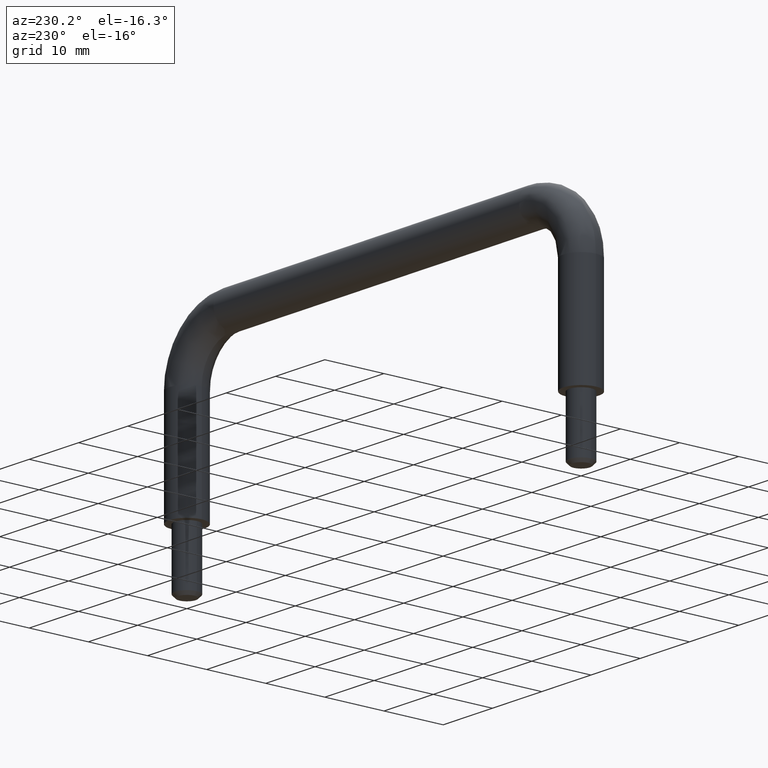
[diagram: clean part render]
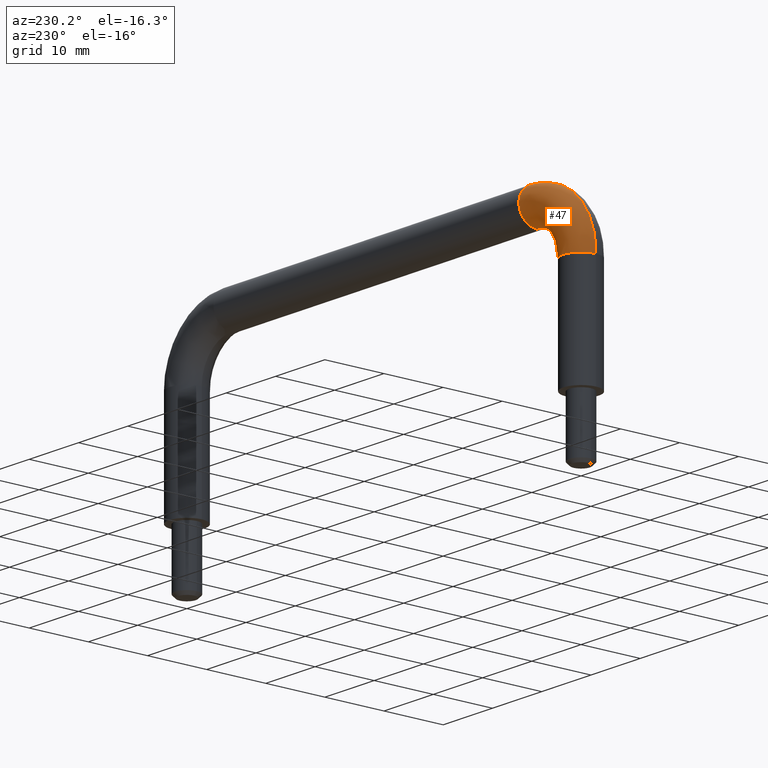
[diagram: same view with one face highlighted and labeled with its STEP entity id]
A machine part, auxiliary view. The second image highlights one B-rep face of the part: STEP entity #47.
In plain terms, the highlighted face is a freeform B-spline surface patch.
Its self-contained STEP definition (entity closure, byte-faithful):
#47=ADVANCED_FACE('',(#135),#134,.T.);
#134=( BOUNDED_SURFACE() B_SPLINE_SURFACE( 3,3,((#456,#457,#458,#459,#460,#461,#462),(#463,#464,#465,#466,#467,#468,#469),(#470,#471,#472,#473,#474,#475,#476),(#477,#478,#479,#480,#481,#482,#483),(#484,#485,#486,#487,#488,#489,#490),(#491,#492,#493,#494,#495,#496,#497),(#498,#499,#500,#501,#502,#503,#504)), .UNSPECIFIED.,.F.,.F.,.F.) B_SPLINE_SURFACE_WITH_KNOTS((4,1,1,1,4),(4,1,1,1,4),(0.00000000000E+00,2.50000000000E-01,5.00000000000E-01,7.50000000000E-01,1.00000000000E+00),(0.00000000000E+00,2.49559115838E-01,5.00000000000E-01,7.50440884162E-01,1.00000000000E+00), .UNSPECIFIED. ) GEOMETRIC_REPRESENTATION_ITEM() RATIONAL_B_SPLINE_SURFACE(((1.00000000000E+00,1.00000000000E+00,1.00000000000E+00,1.00000000000E+00,1.00000000000E+00,1.00000000000E+00,1.00000000000E+00),(1.00000000000E+00,1.00000000000E+00,1.00000000000E+00,1.00000000000E+00,1.00000000000E+00,1.00000000000E+00,1.00000000000E+00),(1.00000000000E+00,1.00000000000E+00,1.00000000000E+00,1.00000000000E+00,1.00000000000E+00,1.00000000000E+00,1.00000000000E+00),(1.00000000000E+00,1.00000000000E+00,1.00000000000E+00,1.00000000000E+00,1.00000000000E+00,1.00000000000E+00,1.00000000000E+00),(1.00000000000E+00,1.00000000000E+00,1.00000000000E+00,1.00000000000E+00,1.00000000000E+00,1.00000000000E+00,1.00000000000E+00),(1.00000000000E+00,1.00000000000E+00,1.00000000000E+00,1.00000000000E+00,1.00000000000E+00,1.00000000000E+00,1.00000000000E+00),(1.00000000000E+00,1.00000000000E+00,1.00000000000E+00,1.00000000000E+00,1.00000000000E+00,1.00000000000E+00,1.00000000000E+00))) REPRESENTATION_ITEM('') SURFACE() );
#135=FACE_OUTER_BOUND('',#505,.T.);
#456=CARTESIAN_POINT('',(-3.09999999999E+01,0.00000000000E+00,6.00000000000E+00));
#457=CARTESIAN_POINT('',(-3.25680263077E+01,0.00000000000E+00,6.00000000000E+00));
#458=CARTESIAN_POINT('',(-3.57087189279E+01,0.00000000000E+00,5.37638042249E+00));
#459=CARTESIAN_POINT('',(-3.97070376104E+01,0.00000000000E+00,2.70703761053E+00));
#460=CARTESIAN_POINT('',(-4.23763804224E+01,0.00000000000E+00,-1.29128107197E+00));
#461=CARTESIAN_POINT('',(-4.29999999999E+01,0.00000000000E+00,-4.43197369219E+00));
#462=CARTESIAN_POINT('',(-4.29999999999E+01,0.00000000000E+00,-5.99999999999E+00));
#463=CARTESIAN_POINT('',(-3.09999999999E+01,7.84902571646E-01,6.00391362429E+00));
#464=CARTESIAN_POINT('',(-3.25553181927E+01,7.84902571646E-01,6.00391362429E+00));
#465=CARTESIAN_POINT('',(-3.57164148752E+01,7.84902571646E-01,5.38056350101E+00));
#466=CARTESIAN_POINT('',(-3.97082160823E+01,7.84902571646E-01,2.70821608237E+00));
#467=CARTESIAN_POINT('',(-4.23805635009E+01,7.84902571646E-01,-1.28358512467E+00));
#468=CARTESIAN_POINT('',(-4.30039136242E+01,7.84902571646E-01,-4.44468180723E+00));
#469=CARTESIAN_POINT('',(-4.30039136242E+01,7.84902571646E-01,-5.99999999999E+00));
#470=CARTESIAN_POINT('',(-3.09999999999E+01,2.35139231717E+00,5.35130912930E+00));
#471=CARTESIAN_POINT('',(-3.24532102396E+01,2.35139231717E+00,5.35130912930E+00));
#472=CARTESIAN_POINT('',(-3.54681813700E+01,2.35139231717E+00,4.76247583335E+00));
#473=CARTESIAN_POINT('',(-3.92325798253E+01,2.35139231717E+00,2.23257982537E+00));
#474=CARTESIAN_POINT('',(-4.17624758332E+01,2.35139231717E+00,-1.53181862989E+00));
#475=CARTESIAN_POINT('',(-4.23513091292E+01,2.35139231717E+00,-4.54678976031E+00));
#476=CARTESIAN_POINT('',(-4.23513091292E+01,2.35139231717E+00,-5.99999999999E+00));
#477=CARTESIAN_POINT('',(-3.09999999999E+01,3.32731061924E+00,3.00000000000E+00));
#478=CARTESIAN_POINT('',(-3.21760197307E+01,3.32731061924E+00,3.00000000000E+00));
#479=CARTESIAN_POINT('',(-3.45315391959E+01,3.32731061924E+00,2.53228531687E+00));
#480=CARTESIAN_POINT('',(-3.75302782078E+01,3.32731061924E+00,5.30278207895E-01));
#481=CARTESIAN_POINT('',(-3.95322853168E+01,3.32731061924E+00,-2.46846080398E+00));
#482=CARTESIAN_POINT('',(-3.99999999999E+01,3.32731061924E+00,-4.82398026914E+00));
#483=CARTESIAN_POINT('',(-3.99999999999E+01,3.32731061924E+00,-5.99999999999E+00));
#484=CARTESIAN_POINT('',(-3.09999999999E+01,2.35139231717E+00,6.48690870700E-01));
#485=CARTESIAN_POINT('',(-3.18988292219E+01,2.35139231717E+00,6.48690870700E-01));
#486=CARTESIAN_POINT('',(-3.35948970218E+01,2.35139231717E+00,3.02094800385E-01));
#487=CARTESIAN_POINT('',(-3.58279765903E+01,2.35139231717E+00,-1.17202340957E+00));
#488=CARTESIAN_POINT('',(-3.73020948003E+01,2.35139231717E+00,-3.40510297807E+00));
#489=CARTESIAN_POINT('',(-3.76486908706E+01,2.35139231717E+00,-5.10117077797E+00));
#490=CARTESIAN_POINT('',(-3.76486908706E+01,2.35139231717E+00,-5.99999999999E+00));
#491=CARTESIAN_POINT('',(-3.09999999999E+01,7.84902571646E-01,-3.91362428601E-03));
#492=CARTESIAN_POINT('',(-3.17967212688E+01,7.84902571646E-01,-3.91362428600E-03));
#493=CARTESIAN_POINT('',(-3.33466635166E+01,7.84902571646E-01,-3.15992867271E-01));
#494=CARTESIAN_POINT('',(-3.53523403333E+01,7.84902571647E-01,-1.64765966658E+00));
#495=CARTESIAN_POINT('',(-3.66840071326E+01,7.84902571646E-01,-3.65333648329E+00));
#496=CARTESIAN_POINT('',(-3.69960863756E+01,7.84902571646E-01,-5.20327873105E+00));
#497=CARTESIAN_POINT('',(-3.69960863756E+01,7.84902571646E-01,-5.99999999999E+00));
#498=CARTESIAN_POINT('',(-3.09999999999E+01,3.67381906147E-16,3.55271367880E-15));
#499=CARTESIAN_POINT('',(-3.17840131538E+01,3.67381906147E-16,3.55271367880E-15));
#500=CARTESIAN_POINT('',(-3.33543594639E+01,3.67381906147E-16,-3.11809788755E-01));
#501=CARTESIAN_POINT('',(-3.53535188052E+01,3.67381906147E-16,-1.64648119474E+00));
#502=CARTESIAN_POINT('',(-3.66881902111E+01,3.67381906147E-16,-3.64564053598E+00));
#503=CARTESIAN_POINT('',(-3.69999999999E+01,3.67381906147E-16,-5.21598684609E+00));
#504=CARTESIAN_POINT('',(-3.69999999999E+01,3.67381906147E-16,-5.99999999999E+00));
#505=EDGE_LOOP('',(#624,#625,#626,#627));
#624=ORIENTED_EDGE('',*,*,#706,.F.);
#625=ORIENTED_EDGE('',*,*,#685,.T.);
#626=ORIENTED_EDGE('',*,*,#707,.F.);
#627=ORIENTED_EDGE('',*,*,#687,.F.);
#685=EDGE_CURVE('',#734,#726,#735,.T.);
#687=EDGE_CURVE('',#741,#727,#748,.T.);
#706=EDGE_CURVE('',#734,#741,#878,.T.);
#707=EDGE_CURVE('',#727,#726,#884,.T.);
#726=VERTEX_POINT('',#1002);
#727=VERTEX_POINT('',#1003);
#734=VERTEX_POINT('',#1008);
#735=CIRCLE('',#1012,6.00000000000E+00);
#741=VERTEX_POINT('',#1013);
#748=(BOUNDED_CURVE() B_SPLINE_CURVE(3,(#1018,#1019,#1020,#1021,#1022),.UNSPECIFIED.,.F.,.F.) B_SPLINE_CURVE_WITH_KNOTS((4,1,4),(3.14159265359E+00,3.92699081698E+00,4.71238898038E+00),.UNSPECIFIED.) CURVE() GEOMETRIC_REPRESENTATION_ITEM() RATIONAL_B_SPLINE_CURVE((1.00000000000E+00,1.00000000000E+00,1.00000000000E+00,1.00000000000E+00,1.00000000000E+00)) REPRESENTATION_ITEM('') );
#878=CIRCLE('',#1115,3.00000000000E+00);
#884=CIRCLE('',#1119,3.00000000000E+00);
#1002=CARTESIAN_POINT('',(-3.69999999999E+01,-1.48029736617E-16,-6.00000000000E+00));
#1003=CARTESIAN_POINT('',(-4.29999999999E+01,0.00000000000E+00,-6.00000000000E+00));
#1008=CARTESIAN_POINT('',(-3.09999999999E+01,0.00000000000E+00,0.00000000000E+00));
#1009=CARTESIAN_POINT('',(-3.09999999999E+01,-3.67381906147E-16,-6.00000000000E+00));
#1010=DIRECTION('',(4.56356335465E-33,-1.00000000000E+00,1.64346021921E-32));
#1011=DIRECTION('',(-2.65269288017E-13,-1.64346021921E-32,-1.00000000000E+00));
#1012=AXIS2_PLACEMENT_3D('',#1009,#1010,#1011);
#1013=CARTESIAN_POINT('',(-3.09999999999E+01,-1.48029736617E-16,6.00000000000E+00));
#1018=CARTESIAN_POINT('',(-3.09999999999E+01,0.00000000000E+00,6.00000000000E+00));
#1019=CARTESIAN_POINT('',(-3.41067496970E+01,0.00000000000E+00,6.02505910442E+00));
#1020=CARTESIAN_POINT('',(-4.04046583476E+01,0.00000000000E+00,3.40465834772E+00));
#1021=CARTESIAN_POINT('',(-4.30250591043E+01,0.00000000000E+00,-2.89325030282E+00));
#1022=CARTESIAN_POINT('',(-4.29999999999E+01,0.00000000000E+00,-5.99999999997E+00));
#1112=CARTESIAN_POINT('',(-3.09999999999E+01,0.00000000000E+00,3.00000000000E+00));
#1113=DIRECTION('',(1.00000000000E+00,0.00000000000E+00,0.00000000000E+00));
#1114=DIRECTION('',(-0.00000000000E+00,-0.00000000000E+00,1.00000000000E+00));
#1115=AXIS2_PLACEMENT_3D('',#1112,#1113,#1114);
#1116=CARTESIAN_POINT('',(-3.99999999999E+01,0.00000000000E+00,-6.00000000000E+00));
#1117=DIRECTION('',(0.00000000000E+00,0.00000000000E+00,-1.00000000000E+00));
#1118=DIRECTION('',(1.00000000000E+00,-0.00000000000E+00,-0.00000000000E+00));
#1119=AXIS2_PLACEMENT_3D('',#1116,#1117,#1118);